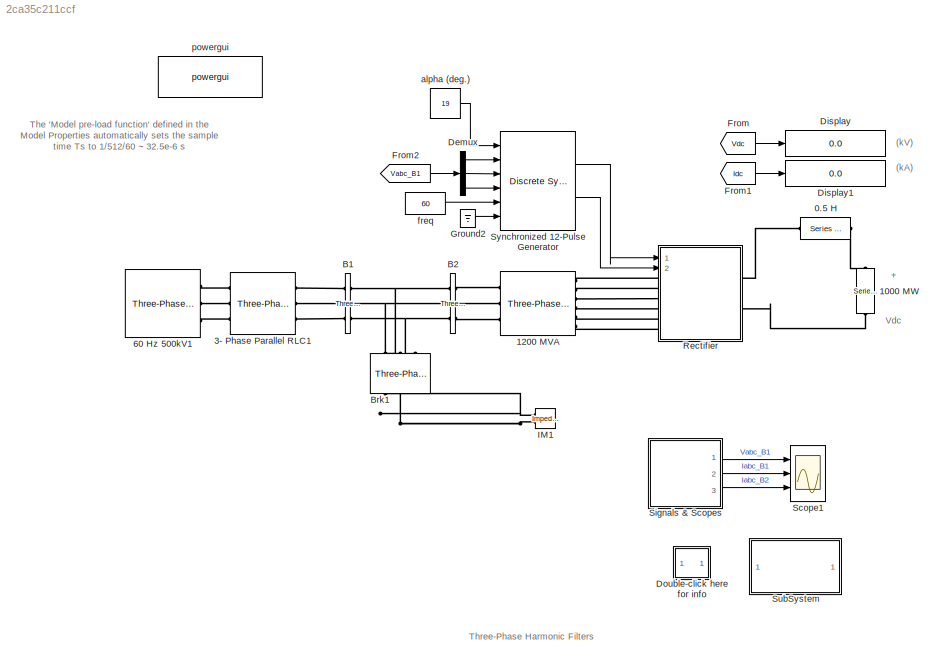
MODEL slx_2ca35c211ccf
KIND model
CONFIG InitFcn = Ts=1/1024/60;
BLOCK [Reference]  60 Hz 500kV1  REF=powerlib/Electrical
Sources/Three-Phase Source
  BaseVoltage = 0
  BusType = swing
  Frequency = 60
  Inductance = 98.03e-3
  InternalConnection = Yg
  PhaseAngle = 0
  Ports = [0, 0, 0, 0, 0, 0, 3]
  Pref = 0
  Qmax = inf
  Qmin = -inf
  Qref = 0
  Resistance = 0
  ShortCircuitLevel = 0
  SourceBlock = powerlib/Electrical\nSources/Three-Phase Source
  SourceType = Three-Phase Source
  SpecifyImpedance = off
  Voltage = 500e3
  XRratio = 0
BLOCK [Reference] 0.5 H   REF=powerlib/Elements/Series RLC Branch
  AttributesFormatString = \n
  BranchType = RL
  Capacitance = 1.0
  Inductance = 0.5
  InitialCurrent = 0
  InitialVoltage = 0
  LConnTagsString = __new0
  Measurements = None
  Ports = [0, 0, 0, 0, 0, 1, 1]
  RConnTagsString = __new0
  Resistance = 1
  SetiL0 = off
  Setx0 = off
  SourceBlock = powerlib/Elements/Series RLC Branch
  SourceType = Series RLC Branch
BLOCK [Reference] 1000 MW  REF=powerlib/Elements/Series RLC Branch
  AttributesFormatString = \n
  BranchType = R
  Capacitance = 1.0
  Inductance = 1.0
  InitialCurrent = 0
  InitialVoltage = 0
  LConnTagsString = __new0
  Measurements = Branch voltage and current
  Ports = [0, 0, 0, 0, 0, 1, 1]
  RConnTagsString = __new0
  Resistance = 500e3^2/1000e6
  SetiL0 = off
  Setx0 = off
  SourceBlock = powerlib/Elements/Series RLC Branch
  SourceType = Series RLC Branch
BLOCK [Reference] 1200 MVA  REF=powerlib/Elements/Three-Phase
Transformer
(Three Windings)
  AttributesFormatString = \n
  BreakLoop = off
  DataFile = 'hysteresis'
  DataType = off
  Hysteresis = off
  InitialFluxes = [0.8 -0.8 0.7]
  Lm = 500
  Measurements = All measurements (V I Fluxes)
  MoreParameters = off
  NominalPower = [ 1200e6 , 60 ]
  Ports = [0, 0, 0, 0, 0, 3, 6]
  Rm = 500
  Saturation = [0 0; 1 1.2; 2 1.1]
  SetInitialFlux = off
  SetSaturation = off
  SourceBlock = powerlib/Elements/Three-Phase\nTransformer\n(Three Windings)
  SourceType = Three-Phase Transformer (Three Windings)
  TransfoNumber = 0
  UNITS = pu
  Winding1 = [ 500e3*0.9 0.0025  0 ]
  Winding1Connection = Yg
  Winding2 = [ 200e3 0.0025 0.24]
  Winding2Connection = Y
  Winding3 = [ 200e3 0.0025 0.24 ]
  Winding3Connection = Delta (D1)
BLOCK [Reference] 3- Phase Parallel RLC1  REF=powerlib/Elements/Three-Phase
Parallel RLC Branch
  AttributesFormatString = \n
  BranchType = RL
  Capacitance = 0
  Inductance = 48.86e-3
  LConnTagsString = A|B|C
  Measurements = None
  Ports = [0, 0, 0, 0, 0, 3, 3]
  RConnTagsString = A|B|C
  Resistance = 26.07
  SourceBlock = powerlib/Elements/Three-Phase\nParallel RLC Branch
  SourceType = Three-Phase Parallel RLC Branch
BLOCK [Reference] B1  REF=powerlib/Measurements/Three-Phase
V-I Measurement
  CurrentMeasurement = yes
  Ipu = off
  LabelI = Iabc_B1
  LabelV = Vabc_B1
  OutputType = Magnitude
  PSBequivalent = 0
  Pbase = 100e6
  PhasorSimulation = off
  Ports = [0, 0, 0, 0, 0, 3, 3]
  SetLabelI = on
  SetLabelV = on
  SourceBlock = powerlib/Measurements/Three-Phase\nV-I Measurement
  SourceType = Three-Phase VI Measurement
  Vbase = 500e3
  VoltageMeasurement = phase-to-ground
  Vpu = off
  VpuLL = off
BLOCK [Reference] B2   REF=powerlib/Measurements/Three-Phase
V-I Measurement
  CurrentMeasurement = yes
  Ipu = off
  LabelI = Iabc_B2
  LabelV = Vabc_B2
  OutputType = Magnitude
  PSBequivalent = 0
  Pbase = 100e6
  PhasorSimulation = off
  Ports = [0, 0, 0, 0, 0, 3, 3]
  SetLabelI = on
  SetLabelV = on
  SourceBlock = powerlib/Measurements/Three-Phase\nV-I Measurement
  SourceType = Three-Phase VI Measurement
  Vbase = 500e3
  VoltageMeasurement = phase-to-ground
  Vpu = off
  VpuLL = off
BLOCK [Reference] Brk1  REF=powerlib/Elements/Three-Phase Breaker
  AttributesFormatString = \n
  BreakerResistance = 1e-4
  External = off
  InitialState = closed
  Measurements = None
  Ports = [0, 0, 0, 0, 0, 3, 3]
  SnubberCapacitance = inf
  SnubberResistance = 1e6
  SourceBlock = powerlib/Elements/Three-Phase Breaker
  SourceType = Three-Phase Breaker
  SwitchA = off
  SwitchB = off
  SwitchC = off
  SwitchTimes = [4/60  10/60]
BLOCK [Demux] Demux
  Outputs = 3
  Ports = [1, 3]
BLOCK [Display] Display
  Decimation = 1
  Format = bank
  Lockdown = off
  Ports = [1]
  SampleTime = Ts*20
BLOCK [Display] Display1
  Decimation = 1
  Format = bank
  Lockdown = off
  Ports = [1]
  SampleTime = Ts*20
BLOCK [SubSystem] Double-click here for info
  FunctionWithSeparateData = off
  MaskHideContents = off
  MinAlgLoopOccurrences = off
  Opaque = off
  OpenFcn = showdemo(bdroot(gcb))
  Ports = []
  PropExecContextOutsideSubsystem = off
  RTWSystemCode = Auto
  RequestExecContextInheritance = off
BLOCK [From] From
  CloseFcn = tagdialog Close
  GotoTag = Vdc
  TagVisibility = global
BLOCK [From] From1
  CloseFcn = tagdialog Close
  GotoTag = Idc
  TagVisibility = global
BLOCK [From] From2
  CloseFcn = tagdialog Close
  GotoTag = Vabc_B1
  TagVisibility = global
BLOCK [Ground] Ground2
BLOCK [Reference] IM1  REF=powerlib/Measurements/Impedance Measurement
  AttributesFormatString = \n
  Factor = 0.5
  LConnTagsString = +|-
  Ports = [0, 0, 0, 0, 0, 2, 1]
  RConnTagsString = __newr0
  SourceBlock = powerlib/Measurements/Impedance Measurement
  SourceType = Impedance Measurement
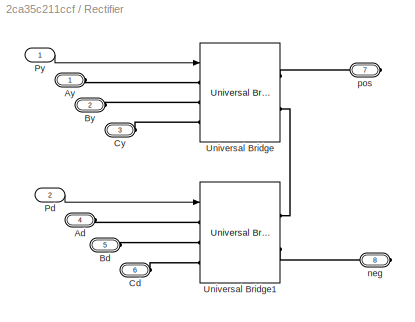
BLOCK [SubSystem] Rectifier
  FunctionWithSeparateData = off
  MaskHideContents = off
  MinAlgLoopOccurrences = off
  Opaque = off
  Ports = [2, 0, 0, 0, 0, 6, 2]
  PropExecContextOutsideSubsystem = off
  RTWSystemCode = Auto
  RequestExecContextInheritance = off
BLOCK [PMIOPort] Rectifier/Ad
  Port = 4
  Side = Left
BLOCK [PMIOPort] Rectifier/Ay
  Port = 1
  Side = Left
BLOCK [PMIOPort] Rectifier/Bd
  Port = 5
  Side = Left
BLOCK [PMIOPort] Rectifier/By
  Port = 2
  Side = Left
BLOCK [PMIOPort] Rectifier/Cd
  Port = 6
  Side = Left
BLOCK [PMIOPort] Rectifier/Cy
  Port = 3
  Side = Left
BLOCK [Inport] Rectifier/Pd
  IconDisplay = Port number
  Port = 2
BLOCK [Inport] Rectifier/Py
  IconDisplay = Port number
BLOCK [Reference] Rectifier/Universal Bridge  REF=powerlib/Power
Electronics/Universal Bridge
  Arms = 3
  AttributesFormatString = \n
  Device = Thyristors
  ForwardVoltage = 0
  ForwardVoltages = [  0.8  0.8  ]
  GTOparameters = [ 10e-6 , 20e-6 ]
  IGBTparameters = [ 1e-6 , 2e-6 ]
  Lon = 0
  Measurements = None
  Measurements_2 = None
  Ports = [1, 0, 0, 0, 0, 3, 2]
  Ron = 1e-3
  SnubberCapacitance = 0.1e-6
  SnubberResistance = 2000
  SourceBlock = powerlib/Power\nElectronics/Universal Bridge
  SourceType = Universal Bridge
  converterType = Rectifier
BLOCK [Reference] Rectifier/Universal Bridge1  REF=powerlib/Power
Electronics/Universal Bridge
  Arms = 3
  AttributesFormatString = \n
  Device = Thyristors
  ForwardVoltage = 0
  ForwardVoltages = [  0.8  0.8  ]
  GTOparameters = [ 10e-6 , 20e-6 ]
  IGBTparameters = [ 1e-6 , 2e-6 ]
  Lon = 0
  Measurements = None
  Measurements_2 = None
  Ports = [1, 0, 0, 0, 0, 3, 2]
  Ron = 1e-3
  SnubberCapacitance = 0.1e-6
  SnubberResistance = 2000
  SourceBlock = powerlib/Power\nElectronics/Universal Bridge
  SourceType = Universal Bridge
  converterType = Rectifier
BLOCK [PMIOPort] Rectifier/neg
  Port = 8
  Side = Right
BLOCK [PMIOPort] Rectifier/pos
  Port = 7
  Side = Right
BLOCK [Scope] Scope1
  DataFormat = StructureWithTime
  Floating = off
  LimitDataPoints = off
  NumInputPorts = 3
  Ports = [3]
  SampleTime = 0
  SaveName = Scope1
  SaveToWorkspace = on
  ShowLegends = off
  YMax = 600000~2500~2500
  YMin = -600000~-2500~-2500
  ZoomMode = xonly
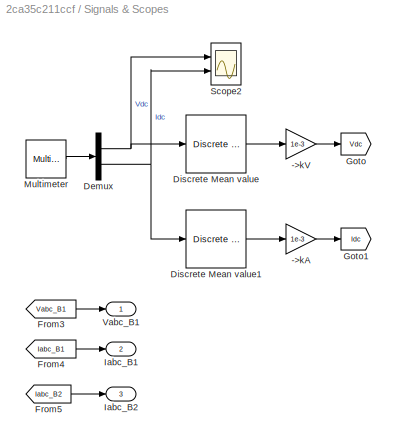
BLOCK [SubSystem] Signals & Scopes 
  FunctionWithSeparateData = off
  MaskHideContents = off
  MinAlgLoopOccurrences = off
  Opaque = off
  Ports = [0, 3]
  PropExecContextOutsideSubsystem = off
  RTWSystemCode = Auto
  RequestExecContextInheritance = off
BLOCK [Gain] Signals & Scopes /->kA
  Gain = 1e-3
BLOCK [Gain] Signals & Scopes /->kV
  Gain = 1e-3
BLOCK [Demux] Signals & Scopes /Demux
  Outputs = [1 1]
  Ports = [1, 2]
BLOCK [Reference] Signals & Scopes /Discrete Mean value  REF=powerlib_extras/Discrete
Measurements/Discrete 
Mean value
  Freq = 60
  Ports = [1, 1]
  SourceBlock = powerlib_extras/Discrete\nMeasurements/Discrete \nMean value
  SourceType = Discrete Mean value
  Ts = Ts
  Vinit = 0
BLOCK [Reference] Signals & Scopes /Discrete Mean value1  REF=powerlib_extras/Discrete
Measurements/Discrete 
Mean value
  Freq = 60
  Ports = [1, 1]
  SourceBlock = powerlib_extras/Discrete\nMeasurements/Discrete \nMean value
  SourceType = Discrete Mean value
  Ts = Ts
  Vinit = 0
BLOCK [From] Signals & Scopes /From3
  CloseFcn = tagdialog Close
  GotoTag = Vabc_B1
  TagVisibility = global
BLOCK [From] Signals & Scopes /From4
  CloseFcn = tagdialog Close
  GotoTag = Iabc_B1
  TagVisibility = global
BLOCK [From] Signals & Scopes /From5
  CloseFcn = tagdialog Close
  GotoTag = Iabc_B2
  TagVisibility = global
BLOCK [Goto] Signals & Scopes /Goto
  GotoTag = Vdc
  TagVisibility = global
BLOCK [Goto] Signals & Scopes /Goto1
  GotoTag = Idc
  TagVisibility = global
BLOCK [Outport] Signals & Scopes /Iabc_B1
  IconDisplay = Port number
  Port = 2
BLOCK [Outport] Signals & Scopes /Iabc_B2
  IconDisplay = Port number
  Port = 3
BLOCK [Reference] Signals & Scopes /Multimeter  REF=powerlib/Measurements/Multimeter
  AxesSetting = [0,0.1,-100,100]
  Display = 0
  Gain = [1 1]
  L = 23
  OutputType = Magnitude
  PSBOutputType = 1
  PSBequivalent = 0
  PhasorSimulation = off
  Ports = [0, 1, 0, 0, 0, 1]
  SavedBlockNames = -11
  SourceBlock = powerlib/Measurements/Multimeter
  SourceType = MultimeterPSB
  sel = [1 11]
  yselected = {'Ub: 1000 MW','Ib: 1000 MW'};
BLOCK [Scope] Signals & Scopes /Scope2
  DataFormat = StructureWithTime
  Floating = off
  LimitDataPoints = off
  NumInputPorts = 2
  Ports = [2]
  SampleTime = 0
  ShowLegends = off
  YMax = 525000~2100
  YMin = -25000~-100
  ZoomMode = yonly
BLOCK [Outport] Signals & Scopes /Vabc_B1
  IconDisplay = Port number
BLOCK [SubSystem] SubSystem
  FunctionWithSeparateData = off
  MaskHideContents = off
  MinAlgLoopOccurrences = off
  Opaque = off
  OpenFcn = openfig('filters_impedance.fig');
  Ports = []
  PropExecContextOutsideSubsystem = off
  RTWSystemCode = Auto
  RequestExecContextInheritance = off
BLOCK [Reference] Synchronized 12-Pulse Generator  REF=powerlib_extras/Discrete 
Control Blocks/Discrete Synchronized
12-Pulse Generator
  Delta = D1 (lagging)
  Double_Pulse = on
  Ports = [6, 2]
  SourceBlock = powerlib_extras/Discrete \nControl Blocks/Discrete Synchronized\n12-Pulse Generator
  SourceType = Discrete synchronized 12-pulse generator
  Ts = Ts
  pwidth = 40
BLOCK [Constant] alpha (deg.)
  Value = 19
BLOCK [Constant] freq
  Value = 60
BLOCK [Reference] powergui  REF=powerlib/powergui
  DisableRonSwitches = off
  DisableSnubberDevices = off
  DisableVfSwitches = off
  DisplayEquations = off
  DisplayStyle = 2
  EnableUseOfTLC = off
  ErrMax = 1e-4
  Frange = [50:2:3000]
  FreqAxis = on
  FunctionMessages = off
  HookPort = off
  Interpol = off
  Iterations = 50
  MaxFrequency = 4000
  Pbase = 100e6
  Ports = []
  Priority = 2
  ResistiveCurrentMeasurement = off
  RestoreLinks = warning
  RmsSteady = 1
  SPID = off
  SampleTime = Ts
  ShowGrid = off
  SolverType = Tustin
  SourceBlock = powerlib/powergui
  SourceType = PSB option menu block
  StartTime = 0.029605
  SwTol = 0
  Ts = 0
  UnitsV = kV
  UnitsW = MW
  UserDataPersistent = on
  Xlog = off
  Ylog = off
  ZoomFFT = off
  cycles = 1
  display = off
  echomessages = off
  frequency = 60
  frequencyindice = 60
  frequencyindicesteady = 1
  fundamental = 60
  methode = off
  save = on
  structure = Scope1
  variable = ZData5
  x0status = blocks
ANNOTATION (root): (kA)
ANNOTATION (root): (kV)
ANNOTATION (root): + Vdc -
ANNOTATION (root): The 'Model pre-load function' defined in the Model Properties automatically sets the sample time Ts to 1/512/60 ~ 32.5e-6 s
ANNOTATION (root): Three-Phase Harmonic Filters
LINE Demux:1 -> Synchronized 12-Pulse Generator:2
LINE Demux:2 -> Synchronized 12-Pulse Generator:3
LINE Demux:3 -> Synchronized 12-Pulse Generator:4
LINE From1:1 -> Display1:1
LINE From2:1 -> Demux:1
LINE From:1 -> Display:1
LINE Ground2:1 -> Synchronized 12-Pulse Generator:6
LINE Rectifier/Pd:1 -> Rectifier/Universal Bridge1:1
LINE Rectifier/Py:1 -> Rectifier/Universal Bridge:1
LINE Signals & Scopes /->kA:1 -> Signals & Scopes /Goto1:1
LINE Signals & Scopes /->kV:1 -> Signals & Scopes /Goto:1
NET Signals & Scopes /Demux:1 -> Signals & Scopes /Discrete Mean value:1, Signals & Scopes /Scope2:1
NET Signals & Scopes /Demux:2 -> Signals & Scopes /Discrete Mean value1:1, Signals & Scopes /Scope2:2
LINE Signals & Scopes /Discrete Mean value1:1 -> Signals & Scopes /->kA:1
LINE Signals & Scopes /Discrete Mean value:1 -> Signals & Scopes /->kV:1
LINE Signals & Scopes /From3:1 -> Signals & Scopes /Vabc_B1:1
LINE Signals & Scopes /From4:1 -> Signals & Scopes /Iabc_B1:1
LINE Signals & Scopes /From5:1 -> Signals & Scopes /Iabc_B2:1
LINE Signals & Scopes /Multimeter:1 -> Signals & Scopes /Demux:1
LINE Signals & Scopes :1 -> Scope1:1
LINE Signals & Scopes :2 -> Scope1:2
LINE Signals & Scopes :3 -> Scope1:3
LINE Synchronized 12-Pulse Generator:1 -> Rectifier:1
LINE Synchronized 12-Pulse Generator:2 -> Rectifier:2
LINE alpha (deg.):1 -> Synchronized 12-Pulse Generator:1
LINE freq:1 -> Synchronized 12-Pulse Generator:5
PLINE  60 Hz 500kV1:RConn1 -- 3- Phase Parallel RLC1:LConn1
PLINE  60 Hz 500kV1:RConn2 -- 3- Phase Parallel RLC1:LConn2
PLINE  60 Hz 500kV1:RConn3 -- 3- Phase Parallel RLC1:LConn3
PLINE 0.5 H :LConn1 -- Rectifier:RConn1
PLINE 0.5 H :RConn1 -- 1000 MW:LConn1
PLINE 1000 MW:RConn1 -- Rectifier:RConn2
PLINE 1200 MVA:LConn1 -- B2 :RConn1
PLINE 1200 MVA:LConn2 -- B2 :RConn2
PLINE 1200 MVA:LConn3 -- B2 :RConn3
PLINE 1200 MVA:RConn1 -- Rectifier:LConn1
PLINE 1200 MVA:RConn2 -- Rectifier:LConn2
PLINE 1200 MVA:RConn3 -- Rectifier:LConn3
PLINE 1200 MVA:RConn4 -- Rectifier:LConn4
PLINE 1200 MVA:RConn5 -- Rectifier:LConn5
PLINE 1200 MVA:RConn6 -- Rectifier:LConn6
PLINE 3- Phase Parallel RLC1:RConn1 -- B1:LConn1
PLINE 3- Phase Parallel RLC1:RConn2 -- B1:LConn2
PLINE 3- Phase Parallel RLC1:RConn3 -- B1:LConn3
PNET net1: B1:RConn1 -- B2 :LConn1 -- Brk1:LConn1
PNET net2: B1:RConn2 -- B2 :LConn2 -- Brk1:LConn2
PNET net3: B1:RConn3 -- B2 :LConn3 -- Brk1:LConn3
PLINE Brk1:RConn1 -- IM1:LConn1
PLINE Brk1:RConn2 -- IM1:LConn2
PLINE Rectifier/Ad:RConn1 -- Rectifier/Universal Bridge1:LConn1
PLINE Rectifier/Ay:RConn1 -- Rectifier/Universal Bridge:LConn1
PLINE Rectifier/Bd:RConn1 -- Rectifier/Universal Bridge1:LConn2
PLINE Rectifier/By:RConn1 -- Rectifier/Universal Bridge:LConn2
PLINE Rectifier/Cd:RConn1 -- Rectifier/Universal Bridge1:LConn3
PLINE Rectifier/Cy:RConn1 -- Rectifier/Universal Bridge:LConn3
PLINE Rectifier/Universal Bridge1:RConn1 -- Rectifier/Universal Bridge:RConn2
PLINE Rectifier/Universal Bridge1:RConn2 -- Rectifier/neg:RConn1
PLINE Rectifier/Universal Bridge:RConn1 -- Rectifier/pos:RConn1
note: NET lines group one-source signal fan-out (src -> all destinations, sorted); 1:1 wires keep LINE; PNET lines group multi-terminal physical nets as a canonical sorted terminal list (undirected conserving connections); 2-terminal nets keep the pairwise PLINE form
